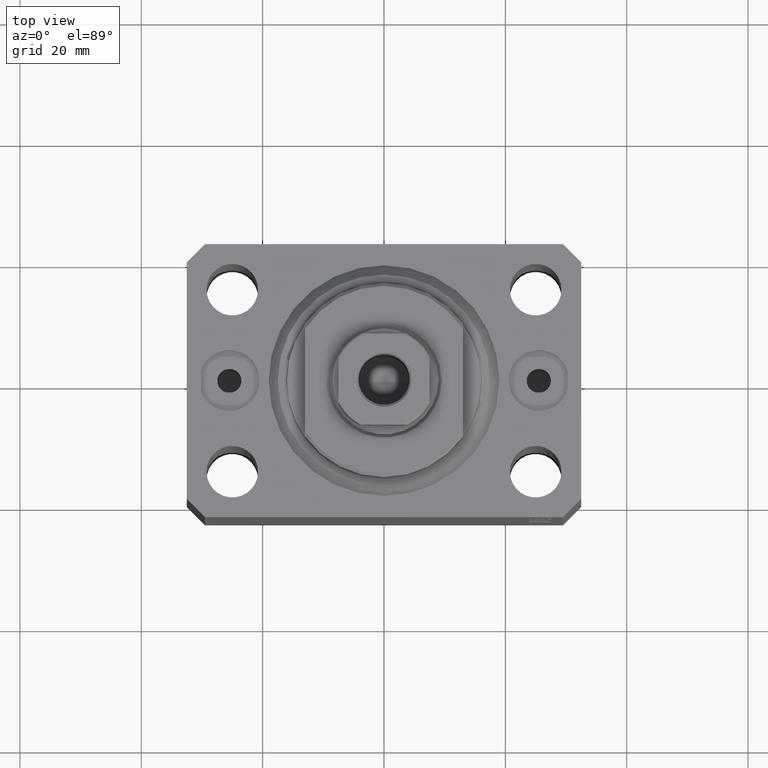
[diagram: clean part render]
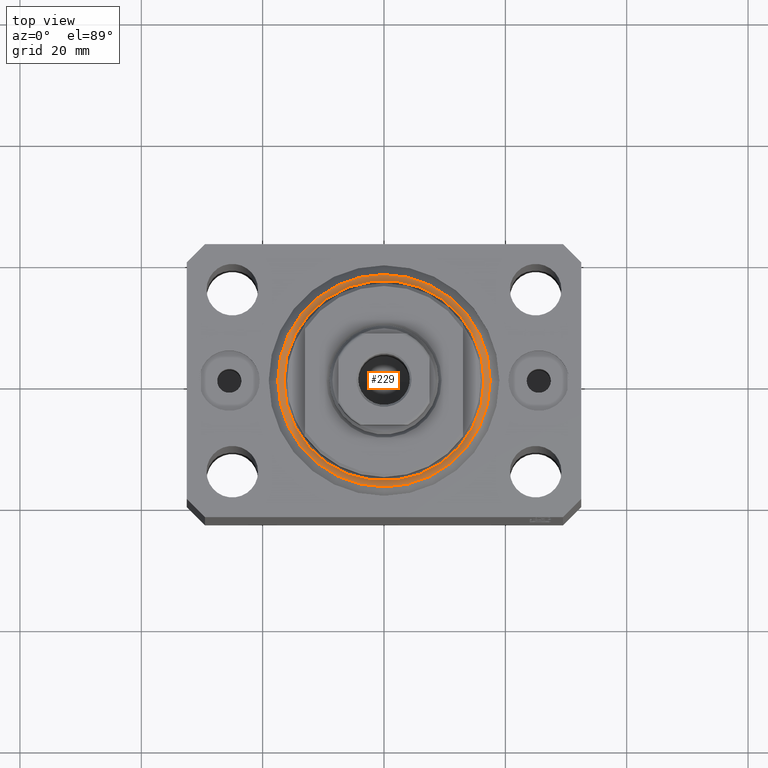
[diagram: same view with one face highlighted and labeled with its STEP entity id]
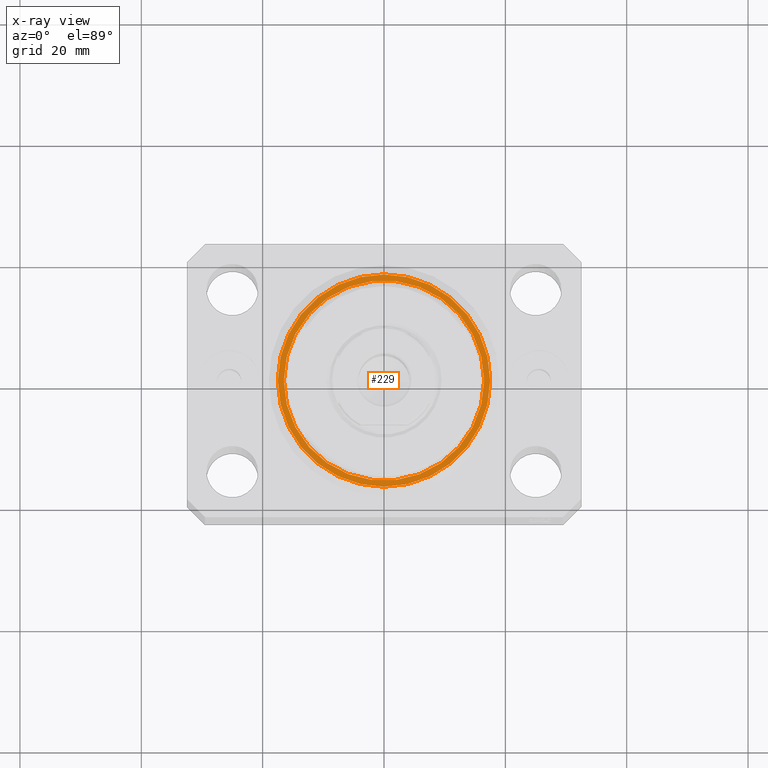
[diagram: x-ray of the same camera — body ghosted, the highlighted face saturated]
A machine part, top view. The second image highlights one B-rep face of the part: STEP entity #229.
The next image is the same camera in x-ray: the body ghosted, the highlighted face saturated — about 0% of this face is hidden behind the body in this view.
In plain terms, the highlighted planar face has unit normal (0, 0, -1).
Its self-contained STEP definition (entity closure, byte-faithful):
#3 = DIRECTION ( 'NONE',  ( 1.000000000000000000, 0.000000000000000000, 0.000000000000000000 ) ) ;
#108 = VERTEX_POINT ( 'NONE', #40169 ) ;
#229 = ADVANCED_FACE ( 'NONE', ( #32029, #8200 ), #35385, .F. ) ;
#1065 = ORIENTED_EDGE ( 'NONE', *, *, #15133, .T. ) ;
#1237 = CARTESIAN_POINT ( 'NONE',  ( 0.000000000000000000, 0.000000000000000000, 0.000000000000000000 ) ) ;
#1634 = DIRECTION ( 'NONE',  ( 1.000000000000000000, 0.000000000000000000, 0.000000000000000000 ) ) ;
#2388 = DIRECTION ( 'NONE',  ( -0.000000000000000000, -0.000000000000000000, -1.000000000000000000 ) ) ;
#2625 = CARTESIAN_POINT ( 'NONE',  ( 0.000000000000000000, 0.000000000000000000, 0.000000000000000000 ) ) ;
#4880 = EDGE_CURVE ( 'NONE', #108, #18512, #39989, .T. ) ;
#5757 = CARTESIAN_POINT ( 'NONE',  ( 0.000000000000000000, 0.000000000000000000, 0.000000000000000000 ) ) ;
#6063 = CIRCLE ( 'NONE', #13979, 17.49999999999999289 ) ;
#8200 = FACE_OUTER_BOUND ( 'NONE', #11804, .T. ) ;
#8241 = CIRCLE ( 'NONE', #18935, 16.50000000000000000 ) ;
#10044 = DIRECTION ( 'NONE',  ( 0.000000000000000000, 0.000000000000000000, 1.000000000000000000 ) ) ;
#11804 = EDGE_LOOP ( 'NONE', ( #42632, #1065 ) ) ;
#11882 = EDGE_CURVE ( 'NONE', #18512, #108, #8241, .T. ) ;
#13573 = CIRCLE ( 'NONE', #22178, 17.49999999999999289 ) ;
#13979 = AXIS2_PLACEMENT_3D ( 'NONE', #17522, #31447, #3 ) ;
#15133 = EDGE_CURVE ( 'NONE', #33120, #39074, #6063, .T. ) ;
#17522 = CARTESIAN_POINT ( 'NONE',  ( 0.000000000000000000, 0.000000000000000000, 0.000000000000000000 ) ) ;
#17651 = DIRECTION ( 'NONE',  ( 1.000000000000000000, 0.000000000000000000, -0.000000000000000000 ) ) ;
#18512 = VERTEX_POINT ( 'NONE', #38248 ) ;
#18935 = AXIS2_PLACEMENT_3D ( 'NONE', #39396, #31986, #1634 ) ;
#19271 = DIRECTION ( 'NONE',  ( 1.000000000000000000, 0.000000000000000000, 0.000000000000000000 ) ) ;
#20373 = DIRECTION ( 'NONE',  ( 1.000000000000000000, 0.000000000000000000, 0.000000000000000000 ) ) ;
#20614 = AXIS2_PLACEMENT_3D ( 'NONE', #2625, #10044, #20373 ) ;
#22178 = AXIS2_PLACEMENT_3D ( 'NONE', #5757, #2388, #19271 ) ;
#22693 = AXIS2_PLACEMENT_3D ( 'NONE', #1237, #41908, #17651 ) ;
#23751 = EDGE_CURVE ( 'NONE', #39074, #33120, #13573, .T. ) ;
#29050 = EDGE_LOOP ( 'NONE', ( #42035, #31665 ) ) ;
#29202 = CARTESIAN_POINT ( 'NONE',  ( 17.49999999999999289, 0.000000000000000000, 0.000000000000000000 ) ) ;
#31447 = DIRECTION ( 'NONE',  ( -0.000000000000000000, -0.000000000000000000, -1.000000000000000000 ) ) ;
#31665 = ORIENTED_EDGE ( 'NONE', *, *, #11882, .T. ) ;
#31986 = DIRECTION ( 'NONE',  ( 0.000000000000000000, 0.000000000000000000, 1.000000000000000000 ) ) ;
#32029 = FACE_BOUND ( 'NONE', #29050, .T. ) ;
#33120 = VERTEX_POINT ( 'NONE', #42917 ) ;
#35385 = PLANE ( 'NONE',  #22693 ) ;
#38248 = CARTESIAN_POINT ( 'NONE',  ( -16.50000000000000000, 2.020667218593133100E-15, 2.168404344971008868E-16 ) ) ;
#39074 = VERTEX_POINT ( 'NONE', #29202 ) ;
#39396 = CARTESIAN_POINT ( 'NONE',  ( 0.000000000000000000, 0.000000000000000000, 0.000000000000000000 ) ) ;
#39989 = CIRCLE ( 'NONE', #20614, 16.50000000000000000 ) ;
#40169 = CARTESIAN_POINT ( 'NONE',  ( 16.50000000000000000, 0.000000000000000000, 2.168404344971008868E-16 ) ) ;
#41908 = DIRECTION ( 'NONE',  ( 0.000000000000000000, 0.000000000000000000, 1.000000000000000000 ) ) ;
#42035 = ORIENTED_EDGE ( 'NONE', *, *, #4880, .T. ) ;
#42632 = ORIENTED_EDGE ( 'NONE', *, *, #23751, .T. ) ;
#42917 = CARTESIAN_POINT ( 'NONE',  ( -17.49999999999999289, 2.234980408443919215E-15, 0.000000000000000000 ) ) ;